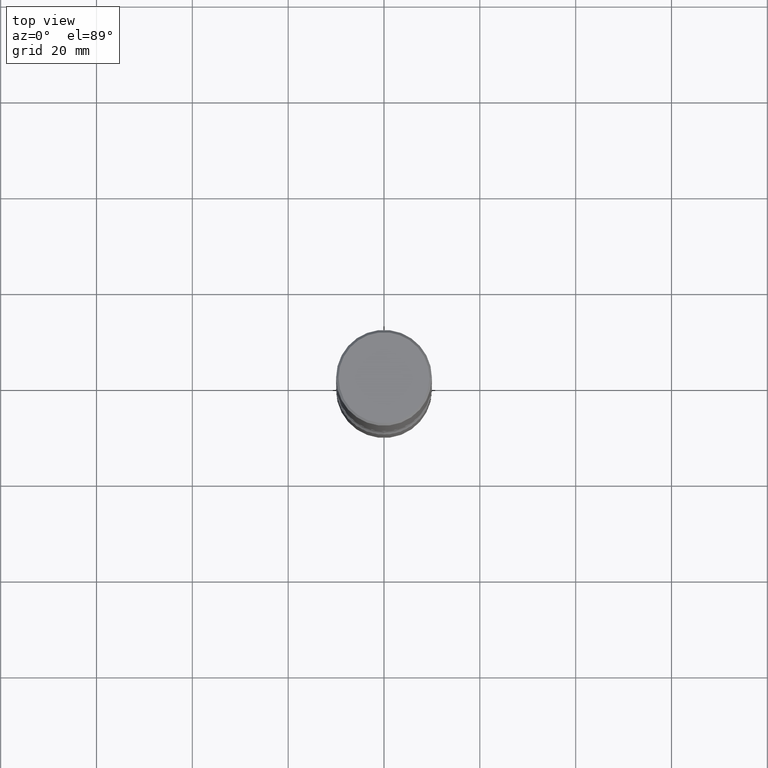
[diagram: clean part render]
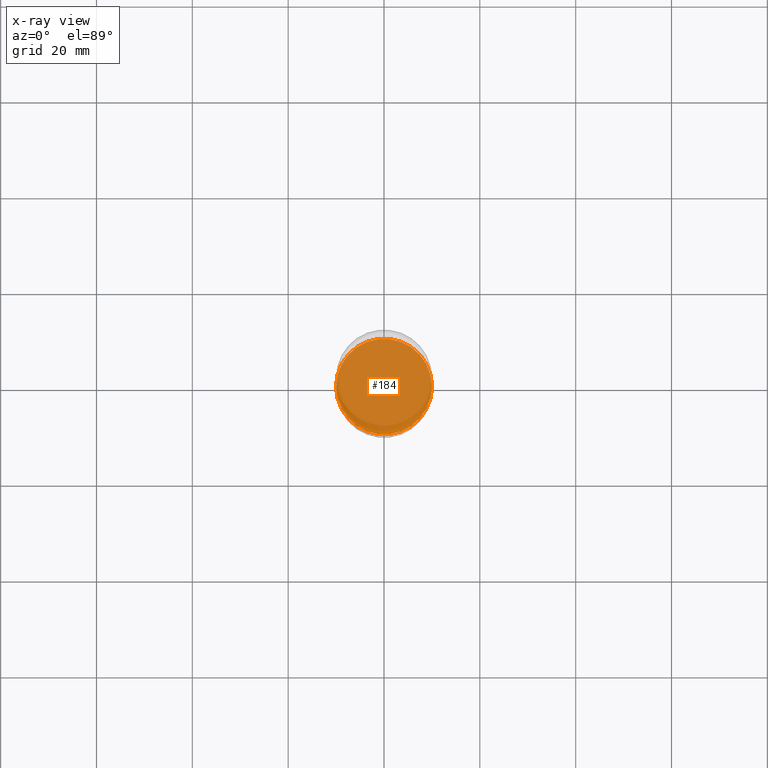
[diagram: x-ray — body ghosted, one internal face saturated and labeled with its STEP entity id]
A machine part, top view, then the same camera in x-ray: the body is ghosted and one INTERNAL B-rep face — a face not visible from any outside direction — is saturated and labeled: STEP entity #184.
In plain terms, the highlighted planar face has unit normal (0, -0, -1).
Its self-contained STEP definition (entity closure, byte-faithful):
#9 = PLANE ( 'NONE',  #429 ) ;
#25 = CARTESIAN_POINT ( 'NONE',  ( 1.030178189293550378E-28, -1.470821428801063089E-14, -4.212599999999998346 ) ) ;
#52 = CARTESIAN_POINT ( 'NONE',  ( 1.030178189293550378E-28, -1.470821428801063089E-14, -4.212599999999998346 ) ) ;
#54 = VERTEX_POINT ( 'NONE', #517 ) ;
#69 = CIRCLE ( 'NONE', #278, 0.3937000000000002720 ) ;
#97 = EDGE_CURVE ( 'NONE', #54, #247, #541, .T. ) ;
#127 = ORIENTED_EDGE ( 'NONE', *, *, #205, .T. ) ;
#136 = CARTESIAN_POINT ( 'NONE',  ( 1.030178189293550378E-28, -1.470821428801063089E-14, -4.212599999999998346 ) ) ;
#141 = AXIS2_PLACEMENT_3D ( 'NONE', #52, #269, #523 ) ;
#150 = DIRECTION ( 'NONE',  ( 1.000000000000000000, -6.982962677686269077E-15, 0.000000000000000000 ) ) ;
#184 = ADVANCED_FACE ( 'NONE', ( #393 ), #9, .F. ) ;
#205 = EDGE_CURVE ( 'NONE', #247, #54, #69, .T. ) ;
#243 = DIRECTION ( 'NONE',  ( -2.445468806185136597E-29, 3.491481338843145583E-15, 1.000000000000000000 ) ) ;
#247 = VERTEX_POINT ( 'NONE', #287 ) ;
#269 = DIRECTION ( 'NONE',  ( -2.445468806185136597E-29, 3.491481338843145583E-15, 1.000000000000000000 ) ) ;
#278 = AXIS2_PLACEMENT_3D ( 'NONE', #25, #243, #150 ) ;
#287 = CARTESIAN_POINT ( 'NONE',  ( -0.3937000000000002720, -1.469439103471581201E-14, -4.212599999999998346 ) ) ;
#348 = DIRECTION ( 'NONE',  ( 2.438088387897960049E-29, -3.491481338843145188E-15, -1.000000000000000000 ) ) ;
#385 = ORIENTED_EDGE ( 'NONE', *, *, #97, .T. ) ;
#393 = FACE_OUTER_BOUND ( 'NONE', #423, .T. ) ;
#423 = EDGE_LOOP ( 'NONE', ( #385, #127 ) ) ;
#429 = AXIS2_PLACEMENT_3D ( 'NONE', #136, #348, #488 ) ;
#488 = DIRECTION ( 'NONE',  ( -1.000000000000000000, 6.982962677686265922E-15, -4.876176775795935793E-29 ) ) ;
#517 = CARTESIAN_POINT ( 'NONE',  ( 0.3937000000000002720, -1.745740669421571411E-14, -4.212599999999998346 ) ) ;
#523 = DIRECTION ( 'NONE',  ( 1.000000000000000000, -6.982962677686269077E-15, 0.000000000000000000 ) ) ;
#541 = CIRCLE ( 'NONE', #141, 0.3937000000000002720 ) ;